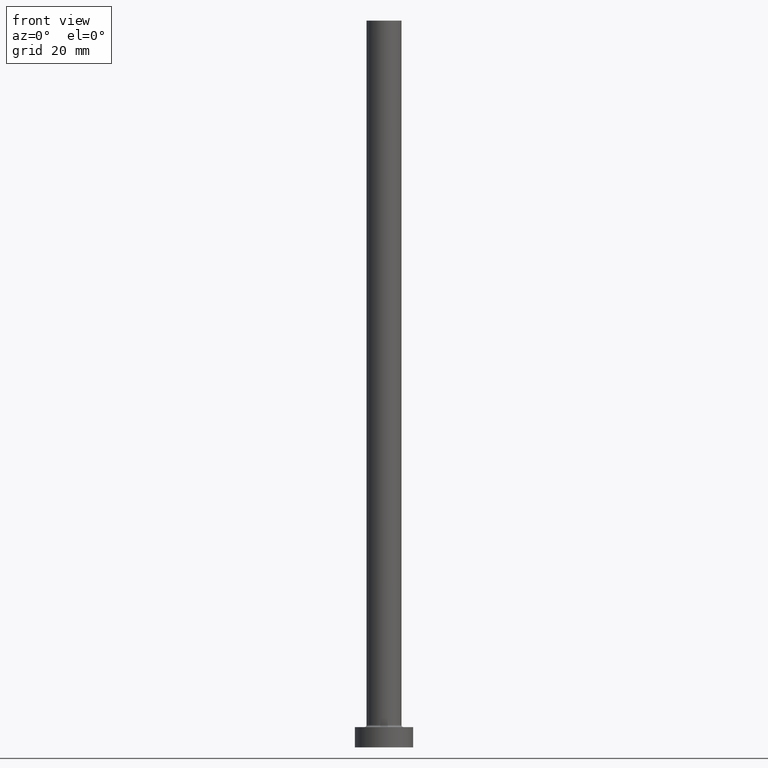
[diagram: clean part render]
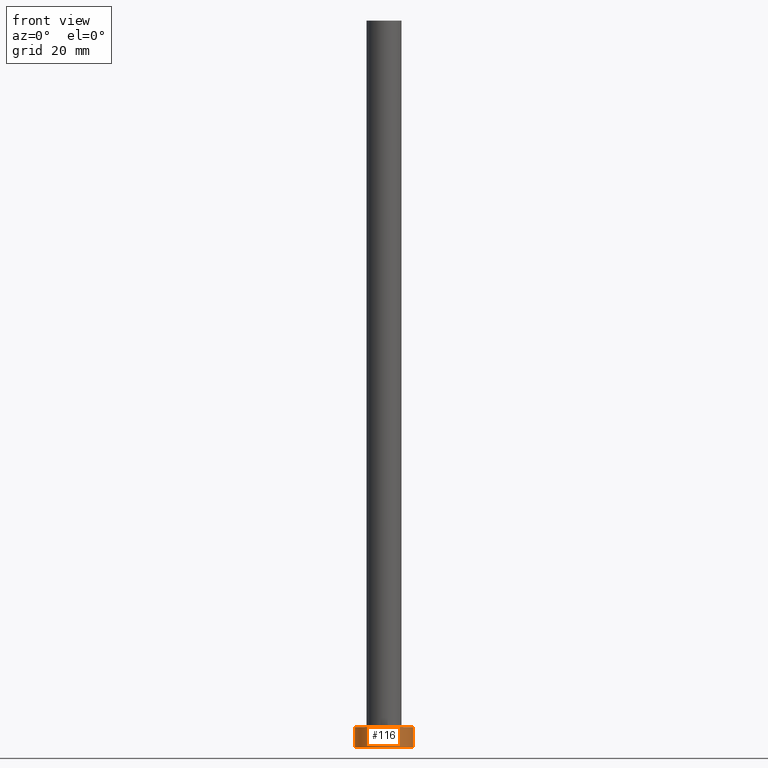
[diagram: same view with one face highlighted and labeled with its STEP entity id]
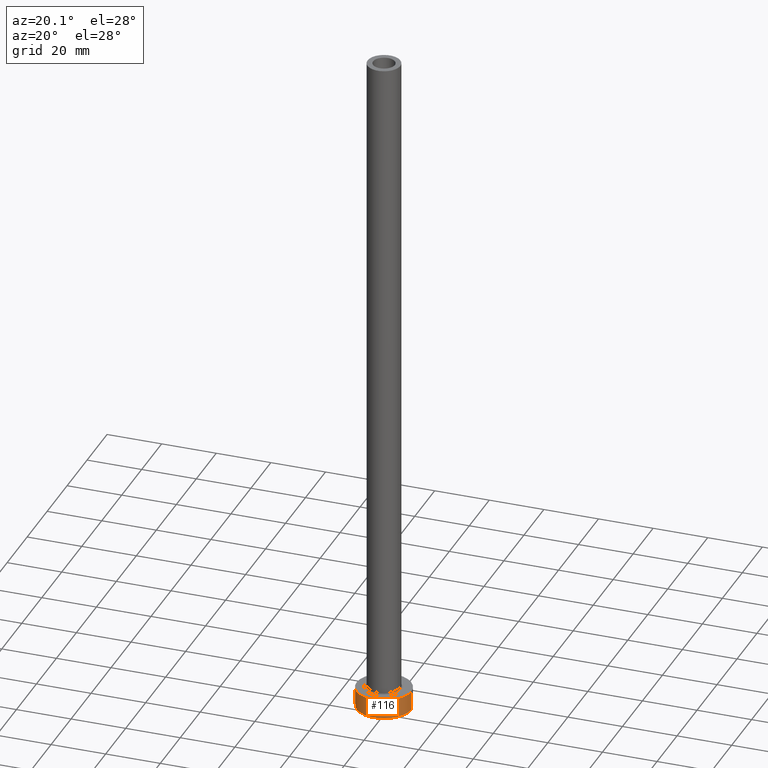
[diagram: same view with one face highlighted and labeled with its STEP entity id]
A machine part, front view. The second image highlights one B-rep face of the part: STEP entity #116.
A second angle (auxiliary view) of the same face is appended — the face is thin or edge-on in the first view.
In plain terms, the highlighted cylindrical surface (edge-blend (fillet) strip) has radius 10 mm, axis along (-0, -0, -1).
Its self-contained STEP definition (entity closure, byte-faithful):
#6 = ORIENTED_EDGE ( 'NONE', *, *, #298, .T. ) ;
#25 = CIRCLE ( 'NONE', #137, 10.00000000000000000 ) ;
#32 = EDGE_CURVE ( 'NONE', #316, #404, #299, .T. ) ;
#52 = EDGE_CURVE ( 'NONE', #370, #316, #25, .T. ) ;
#54 = EDGE_LOOP ( 'NONE', ( #343, #121, #6, #265 ) ) ;
#67 = DIRECTION ( 'NONE',  ( -0.000000000000000000, -0.000000000000000000, -1.000000000000000000 ) ) ;
#69 = CARTESIAN_POINT ( 'NONE',  ( 10.00000000000000000, 1.224646799147353256E-15, 0.000000000000000000 ) ) ;
#81 = CARTESIAN_POINT ( 'NONE',  ( 0.000000000000000000, 0.000000000000000000, 7.000000000000000000 ) ) ;
#87 = EDGE_CURVE ( 'NONE', #243, #404, #293, .T. ) ;
#90 = CARTESIAN_POINT ( 'NONE',  ( 0.000000000000000000, 0.000000000000000000, 7.000000000000000000 ) ) ;
#115 = CARTESIAN_POINT ( 'NONE',  ( 10.00000000000000000, 1.224646799147353256E-15, 7.000000000000000000 ) ) ;
#116 = ADVANCED_FACE ( 'NONE', ( #245 ), #132, .T. ) ;
#121 = ORIENTED_EDGE ( 'NONE', *, *, #52, .F. ) ;
#126 = CARTESIAN_POINT ( 'NONE',  ( -10.00000000000000000, 0.000000000000000000, 0.000000000000000000 ) ) ;
#132 = CYLINDRICAL_SURFACE ( 'NONE', #385, 10.00000000000000000 ) ;
#137 = AXIS2_PLACEMENT_3D ( 'NONE', #81, #225, #232 ) ;
#154 = DIRECTION ( 'NONE',  ( 1.000000000000000000, 0.000000000000000000, 0.000000000000000000 ) ) ;
#186 = LINE ( 'NONE', #333, #306 ) ;
#225 = DIRECTION ( 'NONE',  ( 0.000000000000000000, 0.000000000000000000, 1.000000000000000000 ) ) ;
#232 = DIRECTION ( 'NONE',  ( 1.000000000000000000, 0.000000000000000000, 0.000000000000000000 ) ) ;
#243 = VERTEX_POINT ( 'NONE', #126 ) ;
#245 = FACE_OUTER_BOUND ( 'NONE', #54, .T. ) ;
#255 = DIRECTION ( 'NONE',  ( -1.000000000000000000, 0.000000000000000000, 0.000000000000000000 ) ) ;
#265 = ORIENTED_EDGE ( 'NONE', *, *, #87, .T. ) ;
#270 = CARTESIAN_POINT ( 'NONE',  ( 0.000000000000000000, 0.000000000000000000, 0.000000000000000000 ) ) ;
#287 = DIRECTION ( 'NONE',  ( -0.000000000000000000, -0.000000000000000000, -1.000000000000000000 ) ) ;
#293 = CIRCLE ( 'NONE', #442, 10.00000000000000000 ) ;
#297 = DIRECTION ( 'NONE',  ( -0.000000000000000000, -0.000000000000000000, -1.000000000000000000 ) ) ;
#298 = EDGE_CURVE ( 'NONE', #370, #243, #186, .T. ) ;
#299 = LINE ( 'NONE', #115, #344 ) ;
#306 = VECTOR ( 'NONE', #297, 1000.000000000000000 ) ;
#316 = VERTEX_POINT ( 'NONE', #397 ) ;
#333 = CARTESIAN_POINT ( 'NONE',  ( -10.00000000000000000, 0.000000000000000000, 7.000000000000000000 ) ) ;
#343 = ORIENTED_EDGE ( 'NONE', *, *, #32, .F. ) ;
#344 = VECTOR ( 'NONE', #287, 1000.000000000000000 ) ;
#370 = VERTEX_POINT ( 'NONE', #400 ) ;
#385 = AXIS2_PLACEMENT_3D ( 'NONE', #90, #67, #255 ) ;
#397 = CARTESIAN_POINT ( 'NONE',  ( 10.00000000000000000, 1.224646799147353256E-15, 7.000000000000000000 ) ) ;
#400 = CARTESIAN_POINT ( 'NONE',  ( -10.00000000000000000, 0.000000000000000000, 7.000000000000000000 ) ) ;
#404 = VERTEX_POINT ( 'NONE', #69 ) ;
#405 = DIRECTION ( 'NONE',  ( 0.000000000000000000, 0.000000000000000000, 1.000000000000000000 ) ) ;
#442 = AXIS2_PLACEMENT_3D ( 'NONE', #270, #405, #154 ) ;